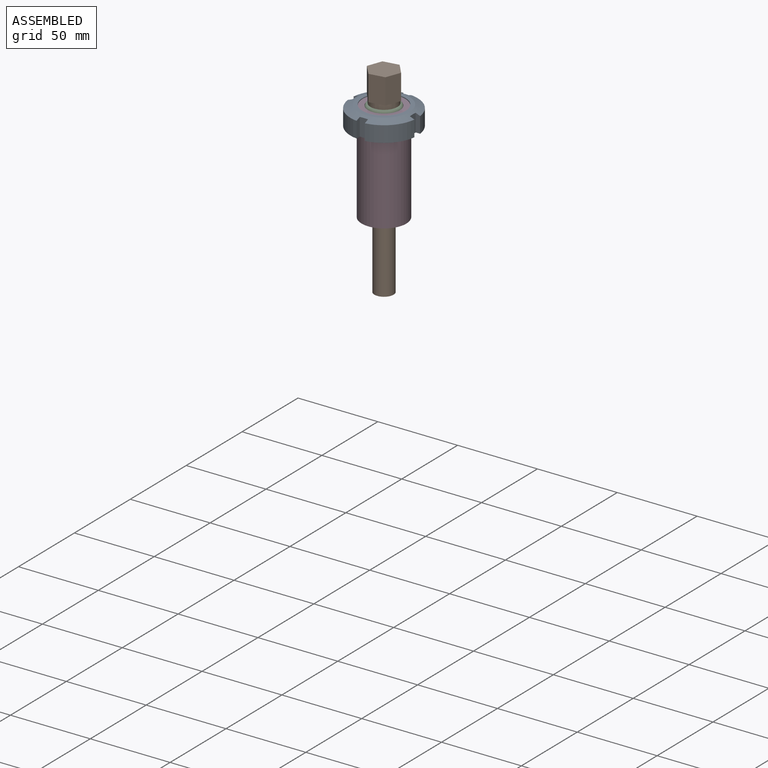
[diagram: assembled view]
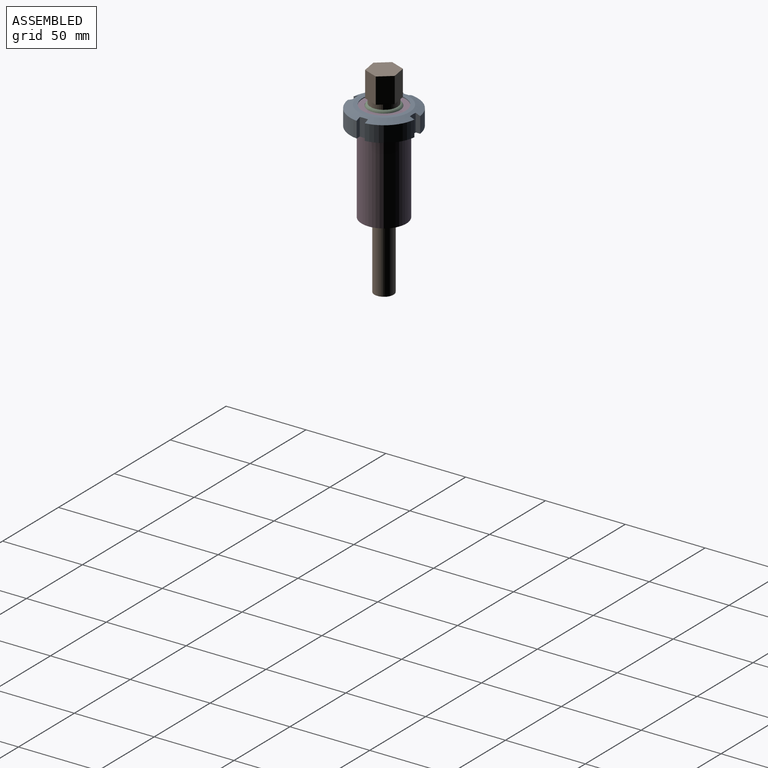
[diagram: assembled view, second angle]
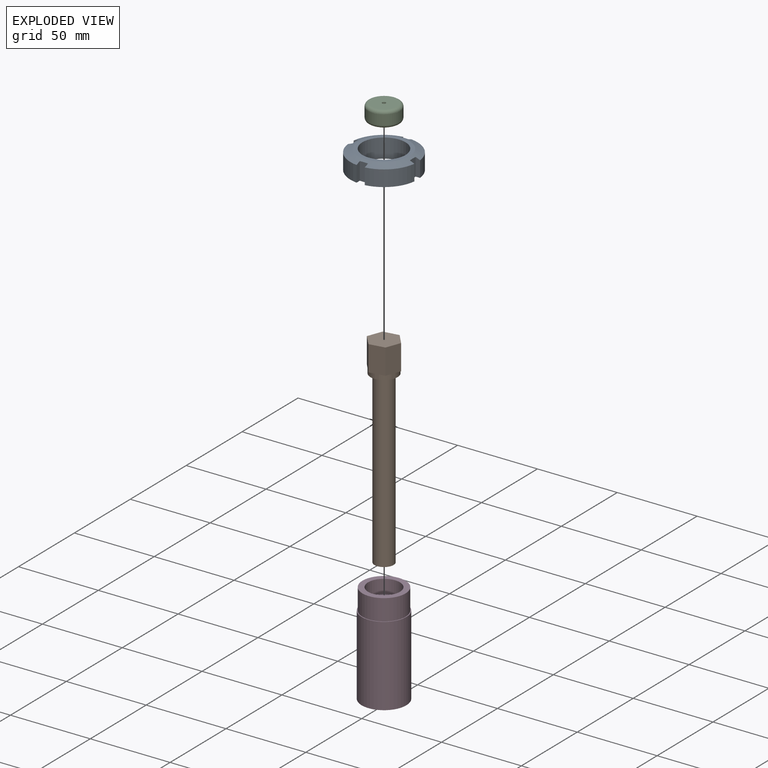
[diagram: exploded view]
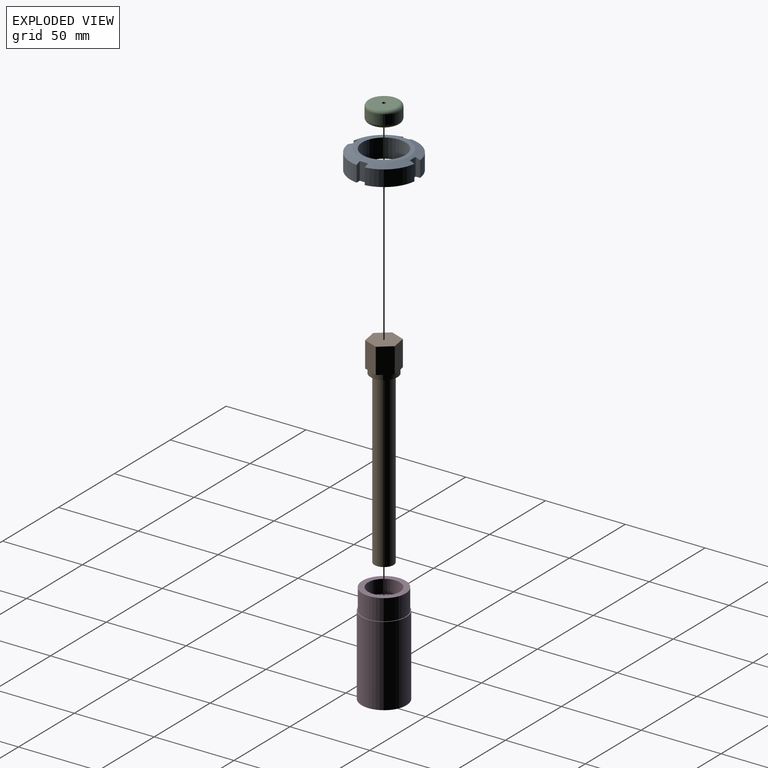
[diagram: exploded view, second angle]
ASSEMBLY  parts=4 mates=3
PART A: 20 faces, bbox 42x42x12 mm
  f0: cylinder r=21mm len=18.27mm, axis (0,0,-1), area 278.2mm2, adj f3,f4,f16,f17
  f1: cylinder r=21mm len=18.27mm, axis (0,0,-1), area 278.2mm2, adj f3,f4,f13,f15
  f2: cylinder r=21mm len=18.27mm, axis (0,0,-1), area 278.2mm2, adj f3,f4,f9,f12
  f3: plane 41.68x41.68mm, normal (0,0,-1), area 752.2mm2, adj f0,f1,f2,f5,f6,f8,f9,f10
  f4: cone r=16mm half-angle=68.2deg, axis (0,0,-1), area 560.4mm2, adj f0,f1,f2,f5,f7,f8,f9,f10
  f5: cylinder r=21mm len=18.27mm, axis (0,0,-1), area 278.2mm2, adj f3,f4,f8,f18
  f6: cylinder r=13.5mm len=27mm, axis (0,0,-1), area 1017.9mm2, adj f3,f7
  f7: plane 32x32mm, normal (0,0,1), area 231.7mm2, adj f4,f6
  f8: plane 11.15x2.87mm, normal (0,-1,0), area 30mm2, adj f3,f4,f5,f10
  f9: plane 11.15x2.87mm, normal (0,1,0), area 30mm2, adj f2,f3,f4,f10
  f10: plane 11.21x5.16mm, normal (-1,0,0), area 57.6mm2, adj f3,f4,f8,f9
  f11: plane 11.2x5.16mm, normal (0,-1,0), area 57.6mm2, adj f3,f4,f12,f13
  f12: plane 11.15x2.87mm, normal (1,0,0), area 30mm2, adj f2,f3,f4,f11
  f13: plane 11.15x2.87mm, normal (-1,0,0), area 30mm2, adj f1,f3,f4,f11
  f14: plane 11.2x5.16mm, normal (1,0,0), area 57.6mm2, adj f3,f4,f15,f16
  f15: plane 11.15x2.87mm, normal (0,1,0), area 30mm2, adj f1,f3,f4,f14
  f16: plane 11.15x2.87mm, normal (0,-1,0), area 30mm2, adj f0,f3,f4,f14
  f17: plane 11.15x2.87mm, normal (-1,0,0), area 30mm2, adj f0,f3,f4,f19
  f18: plane 11.15x2.87mm, normal (1,0,0), area 30mm2, adj f3,f4,f5,f19
  f19: plane 11.2x5.16mm, normal (0,1,0), area 57.6mm2, adj f3,f4,f17,f18
PART B: 22 faces, bbox 16.9x19.5x126 mm
  f0: plane 5.61x3.24mm, normal (0,0,-1), area 3.3mm2, adj f5,f6,f13
  f1: plane 5.61x3.24mm, normal (0,0,-1), area 3.3mm2, adj f6,f7,f14
  f2: plane 6.47x1.87mm, normal (0,0,-1), area 3.3mm2, adj f7,f8,f15
  f3: plane 5.61x3.24mm, normal (0,0,-1), area 3.3mm2, adj f8,f9,f16
  f4: plane 5.61x3.24mm, normal (0,0,-1), area 3.3mm2, adj f9,f10,f17
  f5: plane 19x8.43mm, normal (0.5,-0.87,0), area 162.4mm2, adj f0,f6,f10,f11,f12,f13,f18,f19
  f6: plane 19x9.73mm, normal (1,0,0), area 162.4mm2, adj f0,f1,f5,f7,f11,f13,f14,f19
  f7: plane 19x8.43mm, normal (0.5,0.87,0), area 162.4mm2, adj f1,f2,f6,f8,f11,f14,f15,f19
  f8: plane 19x8.43mm, normal (-0.5,0.87,0), area 162.4mm2, adj f2,f3,f7,f9,f11,f15,f16,f19
  f9: plane 19x9.73mm, normal (-1,0,0), area 162.4mm2, adj f3,f4,f8,f10,f11,f16,f17,f19
  f10: plane 19x8.43mm, normal (-0.5,-0.87,0), area 162.4mm2, adj f4,f5,f9,f11,f12,f17,f18,f19
  f11: plane 19.46x16.85mm, normal (0,0,1), area 245.9mm2, adj f5,f6,f7,f8,f9,f10
  f12: plane 6.47x1.87mm, normal (0,0,-1), area 3.3mm2, adj f5,f10,f18
  f13: cylinder r=8.5mm len=5.61mm, axis (0,0,1), area 19.9mm2, adj f0,f5,f6,f19
  f14: cylinder r=8.5mm len=5.61mm, axis (0,0,1), area 19.9mm2, adj f1,f6,f7,f19
  f15: cylinder r=8.5mm len=6.47mm, axis (0,0,1), area 19.9mm2, adj f2,f7,f8,f19
  f16: cylinder r=8.5mm len=5.61mm, axis (0,0,1), area 19.9mm2, adj f3,f8,f9,f19
  f17: cylinder r=8.5mm len=5.61mm, axis (0,0,1), area 19.9mm2, adj f4,f9,f10,f19
  f18: cylinder r=8.5mm len=6.47mm, axis (0,0,1), area 19.9mm2, adj f5,f10,f12,f19
  f19: plane 17x16.85mm, normal (0,0,-1), area 113.2mm2, adj f5,f6,f7,f8,f9,f10,f13,f14
  f20: cylinder r=6mm len=107mm, axis (0,0,1), area 4033.8mm2, adj f19,f21
  f21: plane 12x12mm, normal (0,0,-1), area 113.1mm2, adj f20
PART C: 6 faces, bbox 21.6x21.6x10 mm
  f0: cylinder r=1.1mm len=10mm, axis (0,0,-1), area 69.1mm2, adj f2,f3
  f1: cylinder r=10mm len=20mm, axis (0,0,-1), area 377mm2, adj f4,f5
  f2: plane 16x16mm, normal (0,0,1), area 197.3mm2, adj f0,f5
  f3: plane 16x16mm, normal (0,0,-1), area 197.3mm2, adj f0,f4
  f4: torus R=8mm, axis (0,0,1), area 183mm2, adj f1,f3
  f5: torus R=8mm, axis (0,0,1), area 183mm2, adj f1,f2
PART D: 8 faces, bbox 28x28x63.2 mm
  f0: cylinder r=6.5mm len=54.6mm, axis (0,0,1), area 2229.9mm2, adj f2,f7
  f1: cylinder r=14mm len=50mm, axis (0,0,1), area 4398.2mm2, adj f2,f3
  f2: plane 28x28mm, normal (0,0,-1), area 483mm2, adj f0,f1
  f3: plane 28x28mm, normal (0,0,1), area 43.2mm2, adj f1,f4
  f4: cylinder r=13.5mm len=27mm, axis (0,0,-1), area 1119.7mm2, adj f3,f5
  f5: plane 27x27mm, normal (0,0,1), area 258.4mm2, adj f4,f6
  f6: cylinder r=10mm len=20mm, axis (0,0,1), area 540.4mm2, adj f5,f7
  f7: plane 20x20mm, normal (0,0,1), area 181.4mm2, adj f0,f6
PLACE A t=(-1.87,-27.37,9.27)mm
PLACE B rot(axis=(0,0,-1),20.6deg) t=(-1.87,-27.37,25.17)mm
PLACE C t=(-1.87,-27.37,12.17)mm
PLACE D t=(-1.87,-27.37,7.57)mm fixed
MATE revolute C.f1 <-> B.f20  axis (0,0,1) through (-1.87,-27.37,22.17)mm
MATE fastened D.f4 <-> A.f0  axis (0,0,1) through (-1.87,-27.37,20.77)mm
MATE fastened D.f4 <-> C.f1  axis (0,0,1) through (-1.87,-27.37,12.17)mm
